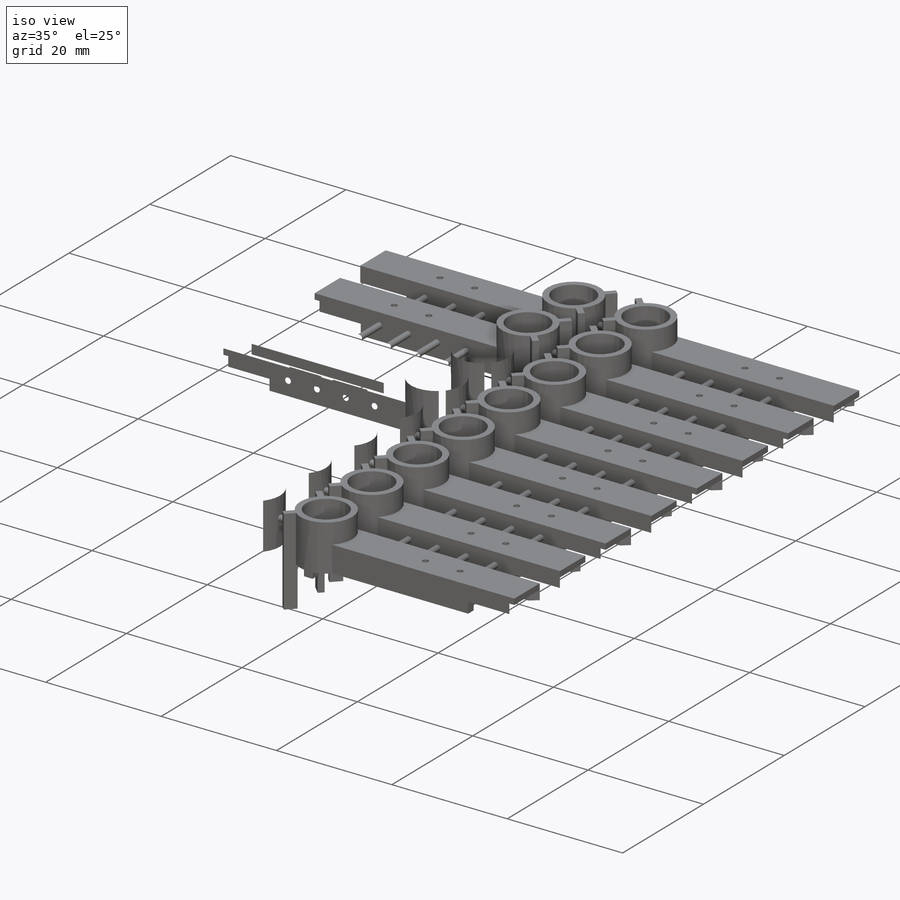
[diagram: iso view]
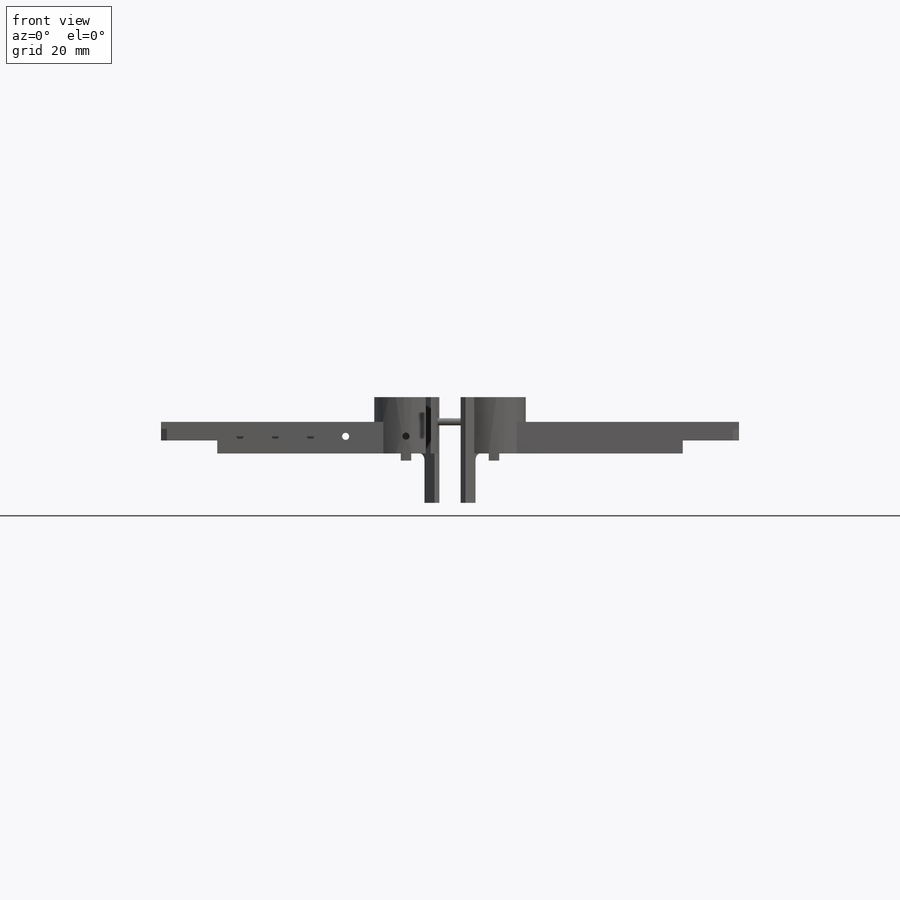
[diagram: front view]
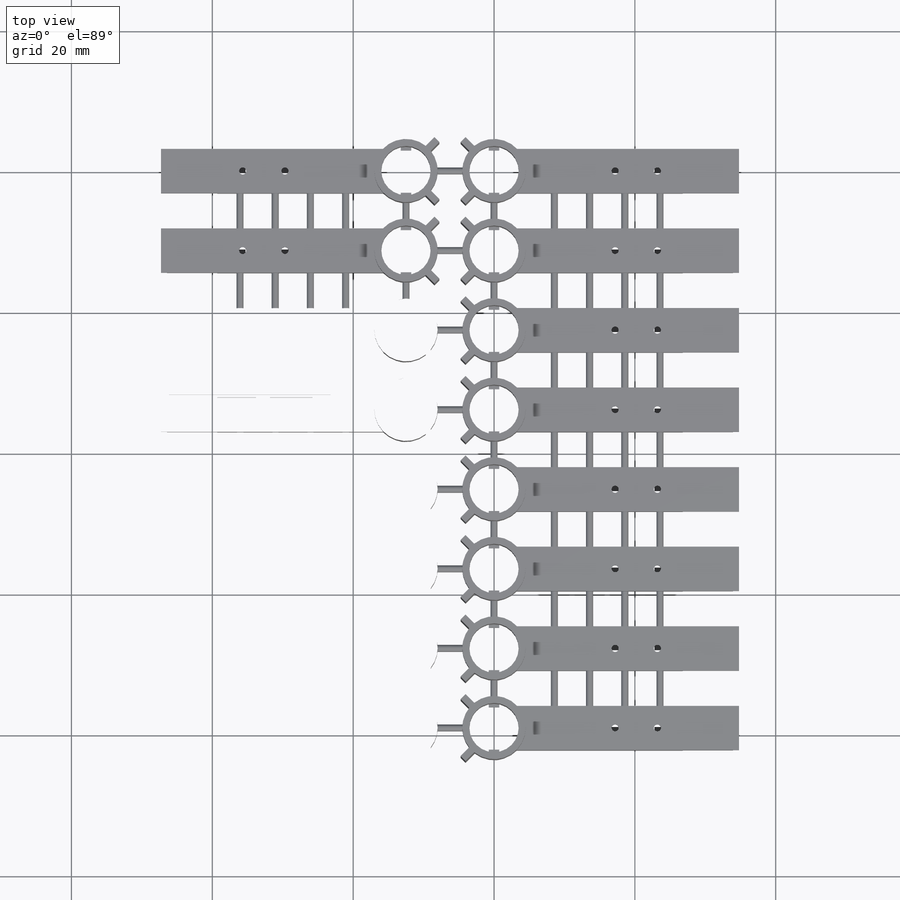
[diagram: top view]
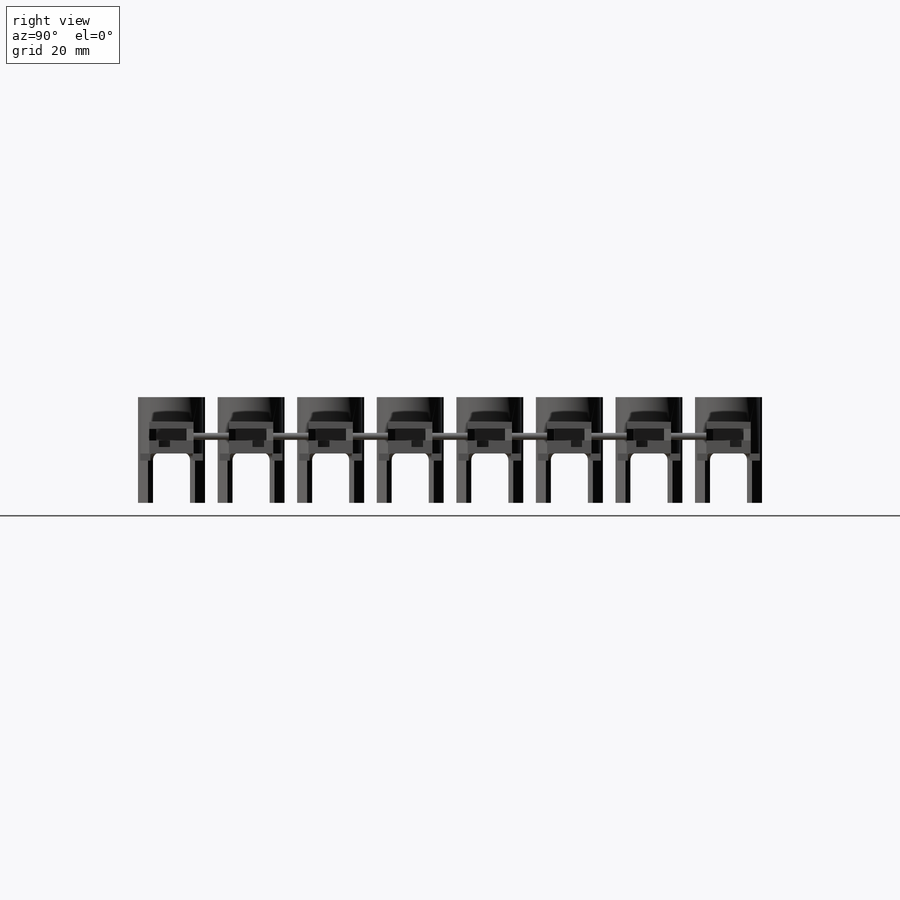
[diagram: right view]
SOLIDWORKS PART (.sldprt)
format: sldprt  version: not decoded by parser v0  size: 1,894,912 bytes
history: native  units: mm
features: sketch x24, extrude x19, material x9, cut_extrude x5, mirror x4, plane x1, fillet x1 (+8 scaffold rows collapsed)
feature tree (71):
  scaffold x8  (default folders/planes/origin — collapsed)
  material  "PE 高密度"
  material  "上视基准面"
  material  "右视基准面"
  material  "基准面1"
  material  "基准面2"
  material  "基准面3"
  material  "基准面6"
  material  "基准面7"
  material  "基准面8"
  plane  "前视基准面"
  sketch  "草图1"  dims[D1=8.5mm D2=7.0mm]
  extrude  "凸台-拉伸2"  Depth=8mm
  sketch  "草图2"  dims[D1=5.5mm D2=2.75mm D3=2.5mm]
  extrude  "凸台-拉伸3"  [1 undecoded]
  sketch  "草图3"
  extrude  "凸台-拉伸4"  Depth=30.541mm
  sketch  "草图4"  dims[c1.D1=~8.207843mm c2.D1=45.0deg c2.D2=~8.401082mm c3.D2=45.0deg c3.D3=0.5mm c3.D4=1.0mm c3.D5=2.0mm c3.D6=~0.317828mm c4.D6=90.0deg c4.D7=~0.288376mm c5.D6=0.5mm c5.D7=2.0mm c5.D8=1.0mm]
  extrude  "凸台-拉伸5"  Depth=15mm
  sketch  "草图5"  dims[D1=9.0mm]
  extrude  "凸台-拉伸10"  Depth=8mm
  sketch  "草图7"  dims[D2=1.0mm D1=0.0mm]
  extrude  "凸台-拉伸11"  [1 undecoded]
  fillet  "圆角1"  Radius=1mm
  sketch  "草图8"  dims[D1=4.3mm D2=1.0mm D3=1.65mm D4=0.4mm D5=0.4mm]
  extrude  "凸台-拉伸12"  [1 undecoded]
  sketch  "草图9"  dims[D1=1.0mm]
  extrude  "凸台-拉伸13"  [1 undecoded]
  sketch  "草图10"  dims[D1=1.0mm D2=4.3mm D3=1.65mm D4=1.8mm D5=1.8mm]
  cut_extrude  "切除-拉伸7"  [1 undecoded]
  sketch  "草图11"  dims[c1.D1=1.0mm c1.D2=1.0mm c1.D3=1.0mm c1.D4=~6.081118mm c2.D4=45.0deg c2.D5=~6.081118mm c3.D5=45.0deg c4.D5=1.0mm c4.D6=1.0mm c4.D7=1.0mm c4.D8=1.0mm c4.D9=1.0mm c4.D10=1.0mm c4.D11=4.3mm]
  cut_extrude  "切除-拉伸8"  [1 undecoded]
  sketch  "草图12"  dims[c1.D1=1.5mm c1.D2=0.5mm c1.D3=3.0mm c1.D4=1.5mm c1.D5=0.5mm c1.D6=3.0mm c2.D2=0.75mm c2.D5=0.75mm]
  extrude  "凸台-拉伸15"  Depth=1mm
  sketch  "草图14"  dims[c1.D1=~1.68329mm c2.D1=129.81deg c2.D2=~1.622045mm c3.D2=140.19deg c3.D3=2.3mm c3.D4=~3.799361mm c4.D4=~38.29485deg c4.D2=3.0mm c5.D2=140.19deg c5.D4=~1.916968mm c6.D4=90.0deg c7.D4=0.0mm c7.D5=~3.697798mm]
  cut_extrude  "切除-拉伸9"  [1 undecoded]
  sketch  "草图15"  dims[D1=8.0mm]
  cut_extrude  "切除-拉伸10"  [1 undecoded]
  sketch  "草图17"  dims[D1=3.0mm D2=3.0mm D3=5.0mm D4=2.0mm D5=3.0mm D6=5.0mm D7=1.0mm]
  extrude  "凸台-拉伸18"  Depth=2mm
  sketch  "草图18"  dims[D1=2.0mm D2=2.0mm D3=5.5mm D4=6.0mm]
  extrude  "凸台-拉伸20"  Depth=2mm
  sketch  "草图19"  dims[D1=20.5mm D2=20.0mm]
  extrude  "凸台-拉伸21"  Depth=1.65mm
  sketch  "草图20"
  extrude  "凸台-拉伸22"  [1 undecoded]
  sketch  "草图21"
  extrude  "凸台-拉伸23"  [1 undecoded]
  sketch  "草图22"  dims[c1.D2=1.0mm c1.D3=1.0mm c1.D5=1.0mm c1.D1=0.5mm c1.D4=6.0mm c2.D5=6.0mm]
  cut_extrude  "切除-拉伸11"  [1 undecoded]
  sketch  "草图23"  dims[c1.D1=1.0mm c1.D2=1.0mm c1.D3=1.0mm c1.D4=1.0mm c1.D5=1.0mm c1.D6=1.0mm c1.D7=1.0mm c2.D5=5.0mm c2.D6=5.0mm c2.D7=5.0mm]
  extrude  "凸台-拉伸24"  Depth=2.5mm
  mirror  "镜向1"
  sketch  "草图24"  dims[D1=1.0mm D2=0.0mm]
  extrude  "凸台-拉伸26"  Depth=3mm
  sketch  "草图25"
  extrude  "凸台-拉伸27"  Depth=3mm
  mirror  "镜向2"
  sketch  "草图28"
  extrude  "凸台-拉伸29"  Depth=2.5mm
  mirror  "镜向5"
  sketch  "草图29"  dims[D1=1.0mm D2=1.0mm D3=1.0mm D4=1.0mm D5=1.0mm D6=1.0mm D7=1.0mm D8=1.0mm]
  extrude  "凸台-拉伸30"  Depth=2.5mm
  mirror  "镜向6"
decode coverage: 33 of 53 modeling features carry decoded parameters
note: ~ marks probable driven/reference dimensions
note: 11 parameter values undecoded
summary: no parameter record found for 11 features
note: suppression state not decoded; provenance and decode notes live in map.json
